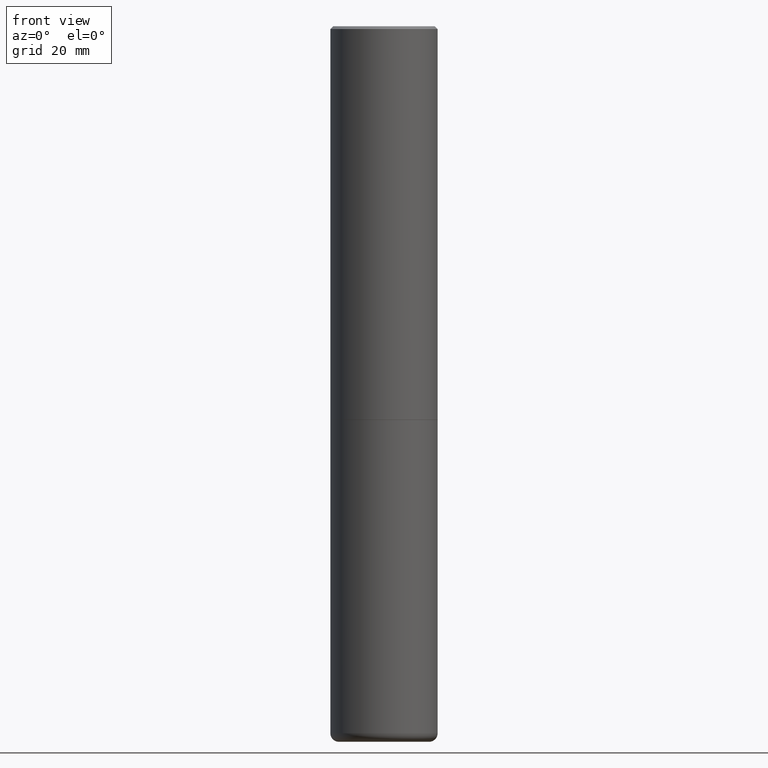
[diagram: clean part render]
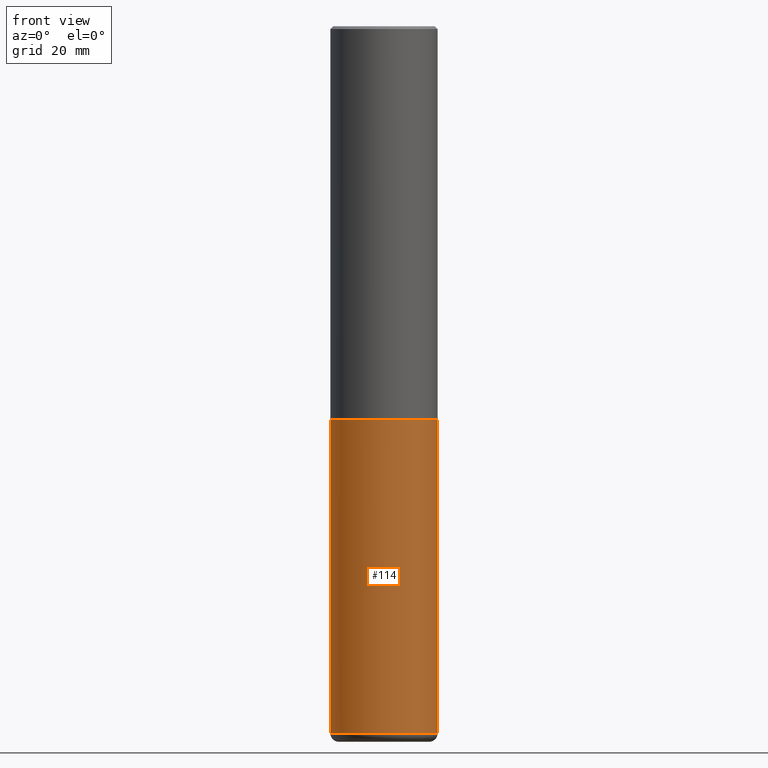
[diagram: same view with one face highlighted and labeled with its STEP entity id]
A machine part, front view. The second image highlights one B-rep face of the part: STEP entity #114.
In plain terms, the highlighted cylindrical surface (partial cylindrical patch) has radius 9.525 mm, axis along (-0, 0, 1).
Its self-contained STEP definition (entity closure, byte-faithful):
#35 = CARTESIAN_POINT ( 'NONE',  ( 0.3750000000000000555, -1.222018468595100145E-14, -2.750000000000000000 ) ) ;
#45 = DIRECTION ( 'NONE',  ( 1.000000000000000000, -6.982962677686263555E-15, 0.000000000000000000 ) ) ;
#51 = VERTEX_POINT ( 'NONE', #35 ) ;
#53 = CARTESIAN_POINT ( 'NONE',  ( -0.3750000000000000555, -1.076021447709884624E-14, -2.750000000000000000 ) ) ;
#59 = EDGE_CURVE ( 'NONE', #304, #51, #98, .T. ) ;
#72 = ORIENTED_EDGE ( 'NONE', *, *, #145, .F. ) ;
#98 = LINE ( 'NONE', #179, #265 ) ;
#101 = DIRECTION ( 'NONE',  ( -2.445468806185136877E-29, 3.491481338843145188E-15, 1.000000000000000000 ) ) ;
#113 = CIRCLE ( 'NONE', #250, 0.3750000000000000555 ) ;
#114 = ADVANCED_FACE ( 'NONE', ( #256 ), #153, .T. ) ;
#127 = DIRECTION ( 'NONE',  ( -2.445468806185136597E-29, 3.491481338843145583E-15, 1.000000000000000000 ) ) ;
#141 = CARTESIAN_POINT ( 'NONE',  ( 6.725039217009124520E-29, -9.601573681818649859E-15, -2.750000000000000000 ) ) ;
#142 = CARTESIAN_POINT ( 'NONE',  ( -0.3749999999999999445, 2.664535259100375303E-15, -1.844600658845589318E-29 ) ) ;
#145 = EDGE_CURVE ( 'NONE', #428, #162, #482, .T. ) ;
#153 = CYLINDRICAL_SURFACE ( 'NONE', #171, 0.3749999999999999445 ) ;
#162 = VERTEX_POINT ( 'NONE', #53 ) ;
#168 = ORIENTED_EDGE ( 'NONE', *, *, #247, .T. ) ;
#171 = AXIS2_PLACEMENT_3D ( 'NONE', #402, #254, #229 ) ;
#175 = ORIENTED_EDGE ( 'NONE', *, *, #490, .F. ) ;
#179 = CARTESIAN_POINT ( 'NONE',  ( 0.3749999999999999445, -2.618611004132349622E-15, 1.828566290923475642E-29 ) ) ;
#229 = DIRECTION ( 'NONE',  ( 1.000000000000000000, -6.982962677686266711E-15, 4.876176775795935793E-29 ) ) ;
#247 = EDGE_CURVE ( 'NONE', #428, #304, #322, .T. ) ;
#250 = AXIS2_PLACEMENT_3D ( 'NONE', #141, #434, #358 ) ;
#254 = DIRECTION ( 'NONE',  ( -2.445468806185136597E-29, 3.491481338843145583E-15, 1.000000000000000000 ) ) ;
#256 = FACE_OUTER_BOUND ( 'NONE', #476, .T. ) ;
#265 = VECTOR ( 'NONE', #449, 39.37007874015748143 ) ;
#274 = CARTESIAN_POINT ( 'NONE',  ( 0.3749999999999999445, -1.986653679471214244E-14, -4.940002284616149986 ) ) ;
#304 = VERTEX_POINT ( 'NONE', #274 ) ;
#322 = CIRCLE ( 'NONE', #424, 0.3749999999999999445 ) ;
#358 = DIRECTION ( 'NONE',  ( 1.000000000000000000, -6.982962677686266711E-15, 0.000000000000000000 ) ) ;
#374 = CARTESIAN_POINT ( 'NONE',  ( -0.3749999999999999445, -1.076021447709884624E-14, -4.940002284616149986 ) ) ;
#382 = CARTESIAN_POINT ( 'NONE',  ( 1.208062148951210544E-28, -1.724792579057979243E-14, -4.940002284616149986 ) ) ;
#402 = CARTESIAN_POINT ( 'NONE',  ( 0.000000000000000000, 0.000000000000000000, 0.000000000000000000 ) ) ;
#409 = ORIENTED_EDGE ( 'NONE', *, *, #59, .T. ) ;
#424 = AXIS2_PLACEMENT_3D ( 'NONE', #382, #127, #45 ) ;
#428 = VERTEX_POINT ( 'NONE', #374 ) ;
#434 = DIRECTION ( 'NONE',  ( -2.445468806185136597E-29, 3.491481338843145583E-15, 1.000000000000000000 ) ) ;
#447 = VECTOR ( 'NONE', #101, 39.37007874015748143 ) ;
#449 = DIRECTION ( 'NONE',  ( -2.445468806185136877E-29, 3.491481338843145188E-15, 1.000000000000000000 ) ) ;
#476 = EDGE_LOOP ( 'NONE', ( #72, #168, #409, #175 ) ) ;
#482 = LINE ( 'NONE', #142, #447 ) ;
#490 = EDGE_CURVE ( 'NONE', #162, #51, #113, .T. ) ;